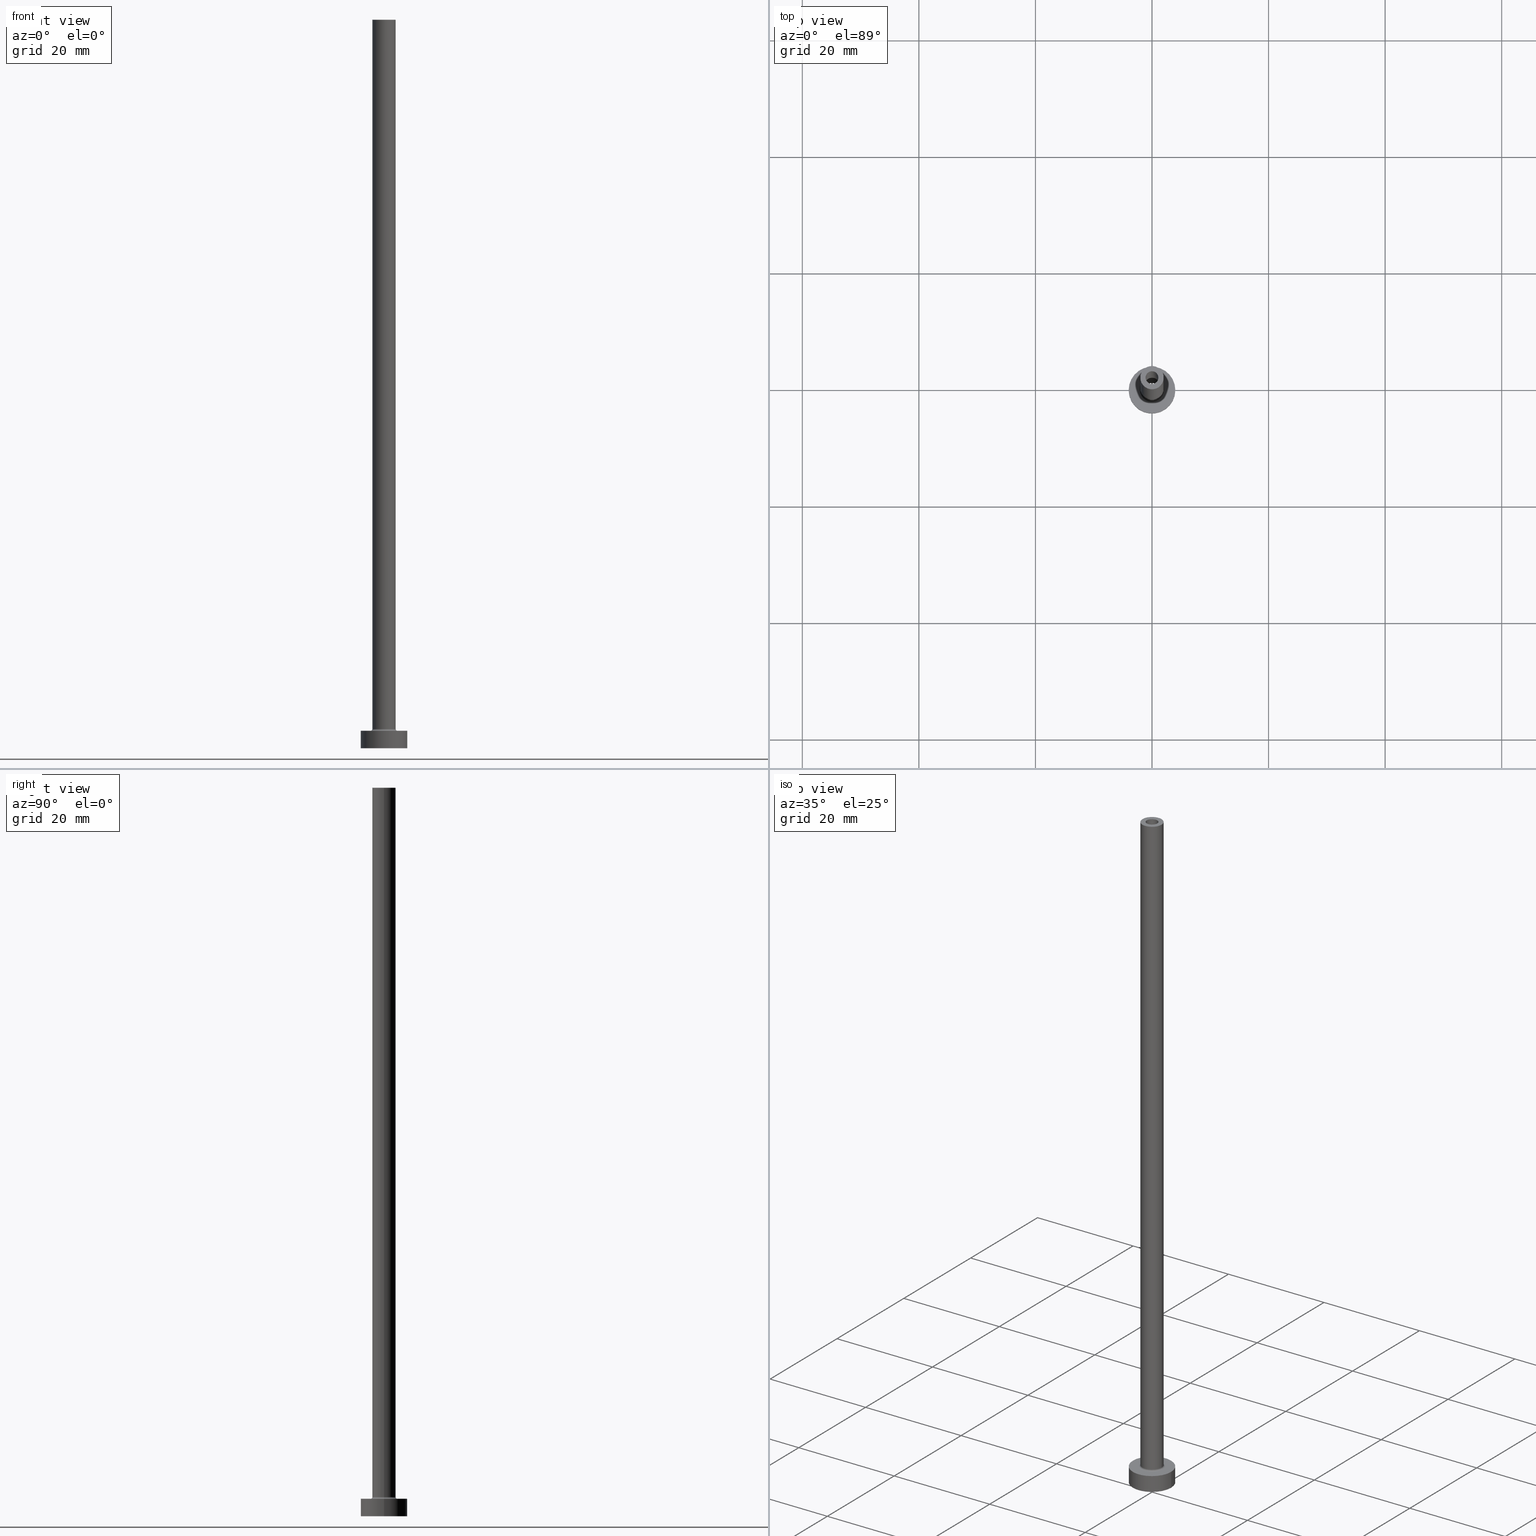
[diagram: canonical four-view strip — front | top / right | iso, engineering-drawing reading convention]
A machine part, canonical four-view strip (front | top / right | iso — engineering-drawing reading convention). The complete STEP part file that produces these views, byte-faithful:
ISO-10303-21;
HEADER;
FILE_DESCRIPTION (( 'STEP AP203' ),
    '1' );
FILE_NAME ('b1d0.STEP',
    '2023-02-13T12:49:57',
    ( '' ),
    ( '' ),
    'SwSTEP 2.0',
    'SolidWorks 2019',
    '' );
FILE_SCHEMA (( 'CONFIG_CONTROL_DESIGN' ));
ENDSEC;

DATA;
#1 = APPLICATION_CONTEXT ( 'configuration controlled 3d designs of mechanical parts and assemblies' ) ;
#2 = DIRECTION ( 'NONE',  ( 1.000000000000000000, 0.000000000000000000, 0.000000000000000000 ) ) ;
#3 = MANIFOLD_SOLID_BREP ( 'Odebrat vysunut�m4', #354 ) ;
#4 = ADVANCED_FACE ( 'NONE', ( #200, #272 ), #239, .F. ) ;
#5 = CALENDAR_DATE ( 2023, 13, 2 ) ;
#6 = DIRECTION ( 'NONE',  ( 1.000000000000000000, 0.000000000000000000, 0.000000000000000000 ) ) ;
#7 = AXIS2_PLACEMENT_3D ( 'NONE', #101, #423, #162 ) ;
#8 = CARTESIAN_POINT ( 'NONE',  ( -1.100000000000000089, 0.000000000000000000, 90.00000000000000000 ) ) ;
#9 = CC_DESIGN_DATE_AND_TIME_ASSIGNMENT ( #395, #108, ( #212 ) ) ;
#10 = AXIS2_PLACEMENT_3D ( 'NONE', #328, #150, #56 ) ;
#11 = CARTESIAN_POINT ( 'NONE',  ( 0.000000000000000000, 0.000000000000000000, 3.000000000000000000 ) ) ;
#12 = DIRECTION ( 'NONE',  ( -1.000000000000000000, 0.000000000000000000, 0.000000000000000000 ) ) ;
#13 = EDGE_LOOP ( 'NONE', ( #451, #30, #105, #449 ) ) ;
#14 = ADVANCED_FACE ( 'NONE', ( #57 ), #314, .F. ) ;
#15 = CYLINDRICAL_SURFACE ( 'NONE', #206, 1.250000000000000000 ) ;
#16 = EDGE_CURVE ( 'NONE', #421, #260, #115, .T. ) ;
#17 = ORIENTED_EDGE ( 'NONE', *, *, #130, .F. ) ;
#18 = VECTOR ( 'NONE', #336, 1000.000000000000000 ) ;
#19 = DIRECTION ( 'NONE',  ( -0.000000000000000000, -0.000000000000000000, -1.000000000000000000 ) ) ;
#20 = ORIENTED_EDGE ( 'NONE', *, *, #183, .T. ) ;
#21 = LINE ( 'NONE', #361, #49 ) ;
#22 = EDGE_LOOP ( 'NONE', ( #95, #267, #34, #416 ) ) ;
#23 = CARTESIAN_POINT ( 'NONE',  ( 0.000000000000000000, 0.000000000000000000, 90.00000000000000000 ) ) ;
#24 = ORIENTED_EDGE ( 'NONE', *, *, #28, .F. ) ;
#25 = APPROVAL_DATE_TIME ( #264, #394 ) ;
#26 = ORIENTED_EDGE ( 'NONE', *, *, #218, .T. ) ;
#27 = AXIS2_PLACEMENT_3D ( 'NONE', #166, #381, #137 ) ;
#28 = EDGE_CURVE ( 'NONE', #273, #69, #125, .T. ) ;
#29 = ORIENTED_EDGE ( 'NONE', *, *, #132, .F. ) ;
#30 = ORIENTED_EDGE ( 'NONE', *, *, #391, .T. ) ;
#31 = CARTESIAN_POINT ( 'NONE',  ( 0.000000000000000000, 0.000000000000000000, 3.000000000000000000 ) ) ;
#32 = CC_DESIGN_PERSON_AND_ORGANIZATION_ASSIGNMENT ( #104, #172, ( #438 ) ) ;
#33 = EDGE_LOOP ( 'NONE', ( #118, #437, #238, #347 ) ) ;
#34 = ORIENTED_EDGE ( 'NONE', *, *, #375, .T. ) ;
#35 = FACE_BOUND ( 'NONE', #254, .T. ) ;
#36 = COORDINATED_UNIVERSAL_TIME_OFFSET ( 1, 0, .AHEAD. ) ;
#37 = CARTESIAN_POINT ( 'NONE',  ( 0.000000000000000000, 0.000000000000000000, 3.000000000000000000 ) ) ;
#38 = CIRCLE ( 'NONE', #308, 0.2999999999999999334 ) ;
#39 = DATE_TIME_ROLE ( 'classification_date' ) ;
#40 = DIRECTION ( 'NONE',  ( 0.000000000000000000, 0.000000000000000000, 1.000000000000000000 ) ) ;
#41 = CARTESIAN_POINT ( 'NONE',  ( 0.000000000000000000, 0.000000000000000000, 0.000000000000000000 ) ) ;
#42 = COORDINATED_UNIVERSAL_TIME_OFFSET ( 1, 0, .AHEAD. ) ;
#43 = DIRECTION ( 'NONE',  ( 0.000000000000000000, 0.000000000000000000, 1.000000000000000000 ) ) ;
#44 = CIRCLE ( 'NONE', #362, 2.000000000000000000 ) ;
#45 = CARTESIAN_POINT ( 'NONE',  ( -4.000000000000000000, 0.000000000000000000, 0.000000000000000000 ) ) ;
#46 = CARTESIAN_POINT ( 'NONE',  ( -1.250000000000000000, 0.000000000000000000, 0.000000000000000000 ) ) ;
#47 = APPLICATION_CONTEXT ( 'configuration controlled 3d designs of mechanical parts and assemblies' ) ;
#48 = CARTESIAN_POINT ( 'NONE',  ( 0.000000000000000000, 0.000000000000000000, 90.00000000000000000 ) ) ;
#49 = VECTOR ( 'NONE', #296, 1000.000000000000000 ) ;
#50 = CARTESIAN_POINT ( 'NONE',  ( 2.299999999999999822, 0.000000000000000000, 2.999999999999998668 ) ) ;
#51 = ORIENTED_EDGE ( 'NONE', *, *, #63, .F. ) ;
#52 = DIRECTION ( 'NONE',  ( 0.000000000000000000, 0.000000000000000000, 1.000000000000000000 ) ) ;
#53 = EDGE_LOOP ( 'NONE', ( #24, #419 ) ) ;
#54 = EDGE_CURVE ( 'NONE', #273, #331, #447, .T. ) ;
#55 = ADVANCED_BREP_SHAPE_REPRESENTATION ( 'b1d0', ( #3, #387 ), #215 ) ;
#56 = DIRECTION ( 'NONE',  ( 1.000000000000000000, 0.000000000000000000, 0.000000000000000000 ) ) ;
#57 = FACE_OUTER_BOUND ( 'NONE', #13, .T. ) ;
#58 = UNCERTAINTY_MEASURE_WITH_UNIT (LENGTH_MEASURE( 1.000000000000000082E-05 ), #337, 'distance_accuracy_value', 'NONE');
#59 = EDGE_CURVE ( 'NONE', #340, #149, #367, .T. ) ;
#60 = PERSON_AND_ORGANIZATION ( #348, #271 ) ;
#61 = EDGE_LOOP ( 'NONE', ( #26, #382 ) ) ;
#62 = AXIS2_PLACEMENT_3D ( 'NONE', #255, #19, #12 ) ;
#63 = EDGE_CURVE ( 'NONE', #409, #312, #257, .T. ) ;
#64 = EDGE_LOOP ( 'NONE', ( #129, #275, #168, #164 ) ) ;
#65 = FACE_OUTER_BOUND ( 'NONE', #61, .T. ) ;
#66 = EDGE_LOOP ( 'NONE', ( #414, #121 ) ) ;
#67 = CIRCLE ( 'NONE', #402, 1.100000000000000089 ) ;
#68 = PERSON_AND_ORGANIZATION_ROLE ( 'design_owner' ) ;
#69 = VERTEX_POINT ( 'NONE', #399 ) ;
#70 = AXIS2_PLACEMENT_3D ( 'NONE', #248, #216, #359 ) ;
#71 = CARTESIAN_POINT ( 'NONE',  ( 0.000000000000000000, 0.000000000000000000, 3.000000000000000000 ) ) ;
#72 = DIRECTION ( 'NONE',  ( 0.000000000000000000, 0.000000000000000000, 1.000000000000000000 ) ) ;
#73 = AXIS2_PLACEMENT_3D ( 'NONE', #235, #338, #160 ) ;
#74 = DATE_AND_TIME ( #458, #454 ) ;
#75 = DIRECTION ( 'NONE',  ( 0.000000000000000000, 0.000000000000000000, -1.000000000000000000 ) ) ;
#76 = CC_DESIGN_APPROVAL ( #394, ( #212 ) ) ;
#77 = CYLINDRICAL_SURFACE ( 'NONE', #324, 1.100000000000000089 ) ;
#78 = COORDINATED_UNIVERSAL_TIME_OFFSET ( 1, 0, .AHEAD. ) ;
#79 = DIRECTION ( 'NONE',  ( 0.000000000000000000, 0.000000000000000000, 1.000000000000000000 ) ) ;
#80 = PRODUCT_DEFINITION_SHAPE ( 'NONE', 'NONE',  #212 ) ;
#81 = CARTESIAN_POINT ( 'NONE',  ( 0.000000000000000000, 0.000000000000000000, 125.0000000000000000 ) ) ;
#82 = AXIS2_PLACEMENT_3D ( 'NONE', #432, #113, #6 ) ;
#83 = LINE ( 'NONE', #156, #417 ) ;
#84 = CC_DESIGN_PERSON_AND_ORGANIZATION_ASSIGNMENT ( #180, #319, ( #135 ) ) ;
#85 = CARTESIAN_POINT ( 'NONE',  ( 0.000000000000000000, 0.000000000000000000, 125.0000000000000000 ) ) ;
#86 = EDGE_LOOP ( 'NONE', ( #185, #364 ) ) ;
#87 = ADVANCED_FACE ( 'NONE', ( #288 ), #217, .F. ) ;
#88 = FACE_OUTER_BOUND ( 'NONE', #195, .T. ) ;
#89 = EDGE_LOOP ( 'NONE', ( #99, #373 ) ) ;
#90 = AXIS2_PLACEMENT_3D ( 'NONE', #41, #145, #2 ) ;
#91 = LINE ( 'NONE', #401, #221 ) ;
#92 = LOCAL_TIME ( 13, 49, 57.00000000000000000, #78 ) ;
#93 = ORIENTED_EDGE ( 'NONE', *, *, #63, .T. ) ;
#94 = CALENDAR_DATE ( 2023, 13, 2 ) ;
#95 = ORIENTED_EDGE ( 'NONE', *, *, #355, .F. ) ;
#96 = ADVANCED_FACE ( 'NONE', ( #35, #214 ), #209, .T. ) ;
#97 =( NAMED_UNIT ( * ) PLANE_ANGLE_UNIT ( ) SI_UNIT ( $, .RADIAN. ) );
#98 = CIRCLE ( 'NONE', #10, 2.000000000000000000 ) ;
#99 = ORIENTED_EDGE ( 'NONE', *, *, #291, .F. ) ;
#100 = VECTOR ( 'NONE', #122, 1000.000000000000000 ) ;
#101 = CARTESIAN_POINT ( 'NONE',  ( 0.000000000000000000, 0.000000000000000000, 0.000000000000000000 ) ) ;
#102 = DIRECTION ( 'NONE',  ( -0.000000000000000000, -0.000000000000000000, -1.000000000000000000 ) ) ;
#103 = ORIENTED_EDGE ( 'NONE', *, *, #452, .F. ) ;
#104 = PERSON_AND_ORGANIZATION ( #348, #271 ) ;
#105 = ORIENTED_EDGE ( 'NONE', *, *, #59, .F. ) ;
#106 = AXIS2_PLACEMENT_3D ( 'NONE', #23, #52, #293 ) ;
#107 = DIRECTION ( 'NONE',  ( -0.000000000000000000, -0.000000000000000000, -1.000000000000000000 ) ) ;
#108 = DATE_TIME_ROLE ( 'creation_date' ) ;
#109 = CYLINDRICAL_SURFACE ( 'NONE', #119, 4.000000000000000000 ) ;
#110 = DIRECTION ( 'NONE',  ( 1.000000000000000000, 0.000000000000000000, 0.000000000000000000 ) ) ;
#111 = CC_DESIGN_APPROVAL ( #457, ( #438 ) ) ;
#112 = CARTESIAN_POINT ( 'NONE',  ( 0.000000000000000000, 0.000000000000000000, 125.0000000000000000 ) ) ;
#113 = DIRECTION ( 'NONE',  ( 0.000000000000000000, 0.000000000000000000, 1.000000000000000000 ) ) ;
#114 = EDGE_CURVE ( 'NONE', #456, #270, #284, .T. ) ;
#115 = CIRCLE ( 'NONE', #188, 2.000000000000000000 ) ;
#116 = DIRECTION ( 'NONE',  ( 0.000000000000000000, 0.000000000000000000, -1.000000000000000000 ) ) ;
#117 = EDGE_CURVE ( 'NONE', #342, #233, #67, .T. ) ;
#118 = ORIENTED_EDGE ( 'NONE', *, *, #305, .F. ) ;
#119 = AXIS2_PLACEMENT_3D ( 'NONE', #71, #211, #142 ) ;
#120 = DIRECTION ( 'NONE',  ( 0.000000000000000000, 0.000000000000000000, -1.000000000000000000 ) ) ;
#121 = ORIENTED_EDGE ( 'NONE', *, *, #386, .T. ) ;
#122 = DIRECTION ( 'NONE',  ( -0.000000000000000000, -0.000000000000000000, -1.000000000000000000 ) ) ;
#123 = EDGE_LOOP ( 'NONE', ( #334, #20, #187, #366 ) ) ;
#124 = FACE_OUTER_BOUND ( 'NONE', #377, .T. ) ;
#125 = CIRCLE ( 'NONE', #276, 1.250000000000000000 ) ;
#126 = CIRCLE ( 'NONE', #404, 1.250000000000000000 ) ;
#127 = COORDINATED_UNIVERSAL_TIME_OFFSET ( 1, 0, .AHEAD. ) ;
#128 = APPROVAL_PERSON_ORGANIZATION ( #349, #457, #398 ) ;
#129 = ORIENTED_EDGE ( 'NONE', *, *, #289, .F. ) ;
#130 = EDGE_CURVE ( 'NONE', #270, #456, #261, .T. ) ;
#131 = CARTESIAN_POINT ( 'NONE',  ( 0.000000000000000000, 0.000000000000000000, 3.000000000000000000 ) ) ;
#132 = EDGE_CURVE ( 'NONE', #312, #409, #167, .T. ) ;
#133 = DIRECTION ( 'NONE',  ( -0.000000000000000000, -0.000000000000000000, -1.000000000000000000 ) ) ;
#134 =( NAMED_UNIT ( * ) SI_UNIT ( $, .STERADIAN. ) SOLID_ANGLE_UNIT ( ) );
#135 = PRODUCT_DEFINITION_FORMATION_WITH_SPECIFIED_SOURCE ( 'LIBOVOLN�', '', #177, .NOT_KNOWN. ) ;
#136 = ORIENTED_EDGE ( 'NONE', *, *, #245, .T. ) ;
#137 = DIRECTION ( 'NONE',  ( 1.000000000000000000, 0.000000000000000000, 0.000000000000000000 ) ) ;
#138 = DIRECTION ( 'NONE',  ( 0.000000000000000000, 0.000000000000000000, -1.000000000000000000 ) ) ;
#139 = VERTEX_POINT ( 'NONE', #246 ) ;
#140 = DIRECTION ( 'NONE',  ( 0.000000000000000000, -1.000000000000000000, 0.000000000000000000 ) ) ;
#141 = AXIS2_PLACEMENT_3D ( 'NONE', #81, #229, #220 ) ;
#142 = DIRECTION ( 'NONE',  ( -1.000000000000000000, 0.000000000000000000, 0.000000000000000000 ) ) ;
#143 = SHAPE_DEFINITION_REPRESENTATION ( #80, #55 ) ;
#144 = FACE_OUTER_BOUND ( 'NONE', #22, .T. ) ;
#145 = DIRECTION ( 'NONE',  ( 0.000000000000000000, 0.000000000000000000, 1.000000000000000000 ) ) ;
#146 = CIRCLE ( 'NONE', #295, 2.299999999999999822 ) ;
#147 = CARTESIAN_POINT ( 'NONE',  ( 2.299999999999999822, 0.000000000000000000, 3.299999999999997158 ) ) ;
#148 = FACE_OUTER_BOUND ( 'NONE', #230, .T. ) ;
#149 = VERTEX_POINT ( 'NONE', #320 ) ;
#150 = DIRECTION ( 'NONE',  ( 0.000000000000000000, 0.000000000000000000, 1.000000000000000000 ) ) ;
#151 = CIRCLE ( 'NONE', #191, 4.000000000000000000 ) ;
#152 = LOCAL_TIME ( 13, 49, 57.00000000000000000, #351 ) ;
#153 = FACE_BOUND ( 'NONE', #306, .T. ) ;
#154 = DIRECTION ( 'NONE',  ( 1.000000000000000000, 0.000000000000000000, 0.000000000000000000 ) ) ;
#155 = ORIENTED_EDGE ( 'NONE', *, *, #391, .F. ) ;
#156 = CARTESIAN_POINT ( 'NONE',  ( -2.000000000000000000, 0.000000000000000000, 125.0000000000000000 ) ) ;
#157 = AXIS2_PLACEMENT_3D ( 'NONE', #393, #322, #279 ) ;
#158 = CIRCLE ( 'NONE', #356, 0.2999999999999999334 ) ;
#159 = PERSON_AND_ORGANIZATION ( #348, #271 ) ;
#160 = DIRECTION ( 'NONE',  ( 1.000000000000000000, 0.000000000000000000, 0.000000000000000000 ) ) ;
#161 = DESIGN_CONTEXT ( 'detailed design', #47, 'design' ) ;
#162 = DIRECTION ( 'NONE',  ( 1.000000000000000000, 0.000000000000000000, -0.000000000000000000 ) ) ;
#163 = CARTESIAN_POINT ( 'NONE',  ( 4.000000000000000000, 4.898587196589412829E-16, 3.000000000000000000 ) ) ;
#164 = ORIENTED_EDGE ( 'NONE', *, *, #352, .T. ) ;
#165 = AXIS2_PLACEMENT_3D ( 'NONE', #131, #353, #283 ) ;
#166 = CARTESIAN_POINT ( 'NONE',  ( 0.000000000000000000, 0.000000000000000000, 3.299999999999997158 ) ) ;
#167 = CIRCLE ( 'NONE', #90, 4.000000000000000000 ) ;
#168 = ORIENTED_EDGE ( 'NONE', *, *, #368, .T. ) ;
#169 = PERSON_AND_ORGANIZATION ( #348, #271 ) ;
#170 = ORIENTED_EDGE ( 'NONE', *, *, #375, .F. ) ;
#171 = CARTESIAN_POINT ( 'NONE',  ( 2.000000000000000000, 2.449293598294705921E-16, 125.0000000000000000 ) ) ;
#172 = PERSON_AND_ORGANIZATION_ROLE ( 'classification_officer' ) ;
#173 = ADVANCED_FACE ( 'NONE', ( #426 ), #109, .T. ) ;
#174 = CARTESIAN_POINT ( 'NONE',  ( 0.000000000000000000, 0.000000000000000000, 93.53553390593272354 ) ) ;
#175 = AXIS2_PLACEMENT_3D ( 'NONE', #48, #403, #154 ) ;
#176 = DIRECTION ( 'NONE',  ( 1.000000000000000000, 0.000000000000000000, 0.000000000000000000 ) ) ;
#177 = PRODUCT ( 'b1d0', 'b1d0', '', ( #383 ) ) ;
#178 = DIRECTION ( 'NONE',  ( 0.000000000000000000, 0.000000000000000000, -1.000000000000000000 ) ) ;
#179 = EDGE_CURVE ( 'NONE', #434, #139, #151, .T. ) ;
#180 = PERSON_AND_ORGANIZATION ( #348, #271 ) ;
#181 = CARTESIAN_POINT ( 'NONE',  ( 0.000000000000000000, 0.000000000000000000, 90.00000000000000000 ) ) ;
#182 = VECTOR ( 'NONE', #186, 1000.000000000000000 ) ;
#183 = EDGE_CURVE ( 'NONE', #69, #273, #445, .T. ) ;
#184 = DIRECTION ( 'NONE',  ( 0.000000000000000000, 0.000000000000000000, -1.000000000000000000 ) ) ;
#185 = ORIENTED_EDGE ( 'NONE', *, *, #59, .T. ) ;
#186 = DIRECTION ( 'NONE',  ( 0.000000000000000000, 0.000000000000000000, -1.000000000000000000 ) ) ;
#187 = ORIENTED_EDGE ( 'NONE', *, *, #54, .T. ) ;
#188 = AXIS2_PLACEMENT_3D ( 'NONE', #303, #310, #385 ) ;
#189 = CARTESIAN_POINT ( 'NONE',  ( 4.000000000000000000, 4.898587196589412829E-16, 3.000000000000000000 ) ) ;
#190 = ORIENTED_EDGE ( 'NONE', *, *, #16, .F. ) ;
#191 = AXIS2_PLACEMENT_3D ( 'NONE', #37, #281, #110 ) ;
#192 = DIRECTION ( 'NONE',  ( -1.000000000000000000, 0.000000000000000000, 0.000000000000000000 ) ) ;
#193 = ORIENTED_EDGE ( 'NONE', *, *, #16, .T. ) ;
#194 = LINE ( 'NONE', #189, #100 ) ;
#195 = EDGE_LOOP ( 'NONE', ( #292, #297, #193, #412 ) ) ;
#196 = DIRECTION ( 'NONE',  ( 1.000000000000000000, 0.000000000000000000, 0.000000000000000000 ) ) ;
#197 = ORIENTED_EDGE ( 'NONE', *, *, #305, .T. ) ;
#198 = AXIS2_PLACEMENT_3D ( 'NONE', #31, #102, #411 ) ;
#199 = PERSON_AND_ORGANIZATION_ROLE ( 'creator' ) ;
#200 = FACE_BOUND ( 'NONE', #89, .T. ) ;
#201 = EDGE_CURVE ( 'NONE', #232, #331, #378, .T. ) ;
#202 = ORIENTED_EDGE ( 'NONE', *, *, #130, .T. ) ;
#203 = EDGE_CURVE ( 'NONE', #149, #340, #146, .T. ) ;
#204 = DIRECTION ( 'NONE',  ( 0.000000000000000000, 0.000000000000000000, 1.000000000000000000 ) ) ;
#205 = DIRECTION ( 'NONE',  ( -1.000000000000000000, 1.224646799147353207E-16, 0.000000000000000000 ) ) ;
#206 = AXIS2_PLACEMENT_3D ( 'NONE', #223, #120, #192 ) ;
#207 = CARTESIAN_POINT ( 'NONE',  ( 0.000000000000000000, 0.000000000000000000, 90.00000000000000000 ) ) ;
#208 = DATE_AND_TIME ( #5, #152 ) ;
#209 = PLANE ( 'NONE',  #427 ) ;
#210 = DATE_AND_TIME ( #240, #92 ) ;
#211 = DIRECTION ( 'NONE',  ( -0.000000000000000000, -0.000000000000000000, -1.000000000000000000 ) ) ;
#212 = PRODUCT_DEFINITION ( 'NEZN�M�', '', #135, #161 ) ;
#213 = PERSON_AND_ORGANIZATION_ROLE ( 'design_supplier' ) ;
#214 = FACE_OUTER_BOUND ( 'NONE', #66, .T. ) ;
#215 =( GEOMETRIC_REPRESENTATION_CONTEXT ( 3 ) GLOBAL_UNCERTAINTY_ASSIGNED_CONTEXT ( ( #58 ) ) GLOBAL_UNIT_ASSIGNED_CONTEXT ( ( #337, #97, #134 ) ) REPRESENTATION_CONTEXT ( 'NONE', 'WORKASPACE' ) );
#216 = DIRECTION ( 'NONE',  ( 0.000000000000000000, 0.000000000000000000, 1.000000000000000000 ) ) ;
#217 = CYLINDRICAL_SURFACE ( 'NONE', #422, 1.250000000000000000 ) ;
#218 = EDGE_CURVE ( 'NONE', #139, #434, #429, .T. ) ;
#219 = AXIS2_PLACEMENT_3D ( 'NONE', #317, #40, #176 ) ;
#220 = DIRECTION ( 'NONE',  ( 1.000000000000000000, 0.000000000000000000, 0.000000000000000000 ) ) ;
#221 = VECTOR ( 'NONE', #116, 1000.000000000000000 ) ;
#222 = CYLINDRICAL_SURFACE ( 'NONE', #436, 2.000000000000000000 ) ;
#223 = CARTESIAN_POINT ( 'NONE',  ( 0.000000000000000000, 0.000000000000000000, 93.53553390593272354 ) ) ;
#224 = ORIENTED_EDGE ( 'NONE', *, *, #28, .T. ) ;
#225 = CC_DESIGN_PERSON_AND_ORGANIZATION_ASSIGNMENT ( #159, #199, ( #212 ) ) ;
#226 = DIRECTION ( 'NONE',  ( -0.000000000000000000, -0.000000000000000000, -1.000000000000000000 ) ) ;
#227 = VERTEX_POINT ( 'NONE', #171 ) ;
#228 = AXIS2_PLACEMENT_3D ( 'NONE', #304, #231, #379 ) ;
#229 = DIRECTION ( 'NONE',  ( 0.000000000000000000, 0.000000000000000000, 1.000000000000000000 ) ) ;
#230 = EDGE_LOOP ( 'NONE', ( #224, #265, #329, #441 ) ) ;
#231 = DIRECTION ( 'NONE',  ( 0.000000000000000000, 0.000000000000000000, 1.000000000000000000 ) ) ;
#232 = VERTEX_POINT ( 'NONE', #244 ) ;
#233 = VERTEX_POINT ( 'NONE', #8 ) ;
#234 = CARTESIAN_POINT ( 'NONE',  ( 1.100000000000000089, 1.347111479062088503E-16, 125.0000000000000000 ) ) ;
#235 = CARTESIAN_POINT ( 'NONE',  ( 0.000000000000000000, 0.000000000000000000, 3.299999999999997158 ) ) ;
#236 = ADVANCED_FACE ( 'NONE', ( #144 ), #77, .F. ) ;
#237 = CARTESIAN_POINT ( 'NONE',  ( 0.000000000000000000, 0.000000000000000000, 0.000000000000000000 ) ) ;
#238 = ORIENTED_EDGE ( 'NONE', *, *, #452, .T. ) ;
#239 = PLANE ( 'NONE',  #7 ) ;
#240 = CALENDAR_DATE ( 2023, 13, 2 ) ;
#241 = EDGE_LOOP ( 'NONE', ( #29, #51 ) ) ;
#242 = DIRECTION ( 'NONE',  ( 1.000000000000000000, 0.000000000000000000, 0.000000000000000000 ) ) ;
#243 = PERSON_AND_ORGANIZATION ( #348, #271 ) ;
#244 = CARTESIAN_POINT ( 'NONE',  ( 1.250000000000000000, 1.530808498934191571E-16, 0.000000000000000000 ) ) ;
#245 = EDGE_CURVE ( 'NONE', #421, #340, #38, .T. ) ;
#246 = CARTESIAN_POINT ( 'NONE',  ( -4.000000000000000000, 0.000000000000000000, 3.000000000000000000 ) ) ;
#247 = EDGE_CURVE ( 'NONE', #69, #232, #425, .T. ) ;
#248 = CARTESIAN_POINT ( 'NONE',  ( 0.000000000000000000, 0.000000000000000000, 125.0000000000000000 ) ) ;
#249 = CARTESIAN_POINT ( 'NONE',  ( 0.000000000000000000, 0.000000000000000000, 125.0000000000000000 ) ) ;
#250 = CARTESIAN_POINT ( 'NONE',  ( -1.100000000000000089, 0.000000000000000000, 125.0000000000000000 ) ) ;
#251 = ORIENTED_EDGE ( 'NONE', *, *, #179, .F. ) ;
#252 = APPROVAL_PERSON_ORGANIZATION ( #169, #394, #311 ) ;
#253 = FACE_OUTER_BOUND ( 'NONE', #53, .T. ) ;
#254 = EDGE_LOOP ( 'NONE', ( #17, #294 ) ) ;
#255 = CARTESIAN_POINT ( 'NONE',  ( 0.000000000000000000, 0.000000000000000000, 125.0000000000000000 ) ) ;
#256 = ORIENTED_EDGE ( 'NONE', *, *, #355, .T. ) ;
#257 = CIRCLE ( 'NONE', #157, 4.000000000000000000 ) ;
#258 = EDGE_CURVE ( 'NONE', #407, #227, #453, .T. ) ;
#259 = CARTESIAN_POINT ( 'NONE',  ( 1.250000000000000000, 1.530808498934191571E-16, 93.53553390593272354 ) ) ;
#260 = VERTEX_POINT ( 'NONE', #371 ) ;
#261 = CIRCLE ( 'NONE', #70, 1.100000000000000089 ) ;
#262 = VECTOR ( 'NONE', #133, 1000.000000000000000 ) ;
#263 = PRODUCT_RELATED_PRODUCT_CATEGORY ( 'detail', '', ( #177 ) ) ;
#264 = DATE_AND_TIME ( #94, #316 ) ;
#265 = ORIENTED_EDGE ( 'NONE', *, *, #247, .T. ) ;
#266 = CYLINDRICAL_SURFACE ( 'NONE', #198, 4.000000000000000000 ) ;
#267 = ORIENTED_EDGE ( 'NONE', *, *, #114, .T. ) ;
#268 = ADVANCED_FACE ( 'NONE', ( #365 ), #290, .T. ) ;
#269 = CARTESIAN_POINT ( 'NONE',  ( -4.000000000000000000, 0.000000000000000000, 3.000000000000000000 ) ) ;
#270 = VERTEX_POINT ( 'NONE', #406 ) ;
#271 = ORGANIZATION ( 'NEUR�EN�', 'NEUR�EN�', '' ) ;
#272 = FACE_OUTER_BOUND ( 'NONE', #241, .T. ) ;
#273 = VERTEX_POINT ( 'NONE', #333 ) ;
#274 = EDGE_CURVE ( 'NONE', #233, #342, #370, .T. ) ;
#275 = ORIENTED_EDGE ( 'NONE', *, *, #258, .F. ) ;
#276 = AXIS2_PLACEMENT_3D ( 'NONE', #207, #204, #344 ) ;
#277 = APPROVAL ( #358, 'NEUR�EN�' ) ;
#278 = AXIS2_PLACEMENT_3D ( 'NONE', #181, #79, #242 ) ;
#279 = DIRECTION ( 'NONE',  ( 1.000000000000000000, 0.000000000000000000, 0.000000000000000000 ) ) ;
#280 = PERSON_AND_ORGANIZATION ( #348, #271 ) ;
#281 = DIRECTION ( 'NONE',  ( 0.000000000000000000, 0.000000000000000000, 1.000000000000000000 ) ) ;
#282 = APPROVAL_STATUS ( 'not_yet_approved' ) ;
#283 = DIRECTION ( 'NONE',  ( 1.000000000000000000, 0.000000000000000000, 0.000000000000000000 ) ) ;
#284 = CIRCLE ( 'NONE', #219, 1.100000000000000089 ) ;
#285 = ADVANCED_FACE ( 'NONE', ( #88 ), #222, .T. ) ;
#286 = SECURITY_CLASSIFICATION_LEVEL ( 'unclassified' ) ;
#287 = CARTESIAN_POINT ( 'NONE',  ( 0.000000000000000000, 0.000000000000000000, 90.00000000000000000 ) ) ;
#288 = FACE_OUTER_BOUND ( 'NONE', #123, .T. ) ;
#289 = EDGE_CURVE ( 'NONE', #227, #421, #21, .T. ) ;
#290 = CYLINDRICAL_SURFACE ( 'NONE', #62, 2.000000000000000000 ) ;
#291 = EDGE_CURVE ( 'NONE', #331, #232, #126, .T. ) ;
#292 = ORIENTED_EDGE ( 'NONE', *, *, #386, .F. ) ;
#293 = DIRECTION ( 'NONE',  ( 1.000000000000000000, 0.000000000000000000, -0.000000000000000000 ) ) ;
#294 = ORIENTED_EDGE ( 'NONE', *, *, #114, .F. ) ;
#295 = AXIS2_PLACEMENT_3D ( 'NONE', #11, #107, #461 ) ;
#296 = DIRECTION ( 'NONE',  ( -0.000000000000000000, -0.000000000000000000, -1.000000000000000000 ) ) ;
#297 = ORIENTED_EDGE ( 'NONE', *, *, #289, .T. ) ;
#298 = CARTESIAN_POINT ( 'NONE',  ( 0.000000000000000000, 0.000000000000000000, 3.299999999999997158 ) ) ;
#299 = VECTOR ( 'NONE', #138, 1000.000000000000000 ) ;
#300 = CARTESIAN_POINT ( 'NONE',  ( 1.100000000000000089, 1.347111479062088503E-16, 90.00000000000000000 ) ) ;
#301 = ORIENTED_EDGE ( 'NONE', *, *, #274, .T. ) ;
#302 = TOROIDAL_SURFACE ( 'NONE', #27, 2.299999999999999822, 0.2999999999999999889 ) ;
#303 = CARTESIAN_POINT ( 'NONE',  ( 0.000000000000000000, 0.000000000000000000, 3.299999999999997158 ) ) ;
#304 = CARTESIAN_POINT ( 'NONE',  ( 0.000000000000000000, 0.000000000000000000, 3.000000000000000000 ) ) ;
#305 = EDGE_CURVE ( 'NONE', #434, #409, #194, .T. ) ;
#306 = EDGE_LOOP ( 'NONE', ( #301, #444 ) ) ;
#307 = ORIENTED_EDGE ( 'NONE', *, *, #203, .F. ) ;
#308 = AXIS2_PLACEMENT_3D ( 'NONE', #147, #140, #388 ) ;
#309 = FACE_OUTER_BOUND ( 'NONE', #33, .T. ) ;
#310 = DIRECTION ( 'NONE',  ( 0.000000000000000000, 0.000000000000000000, 1.000000000000000000 ) ) ;
#311 = APPROVAL_ROLE ( '' ) ;
#312 = VERTEX_POINT ( 'NONE', #45 ) ;
#313 = DIRECTION ( 'NONE',  ( 1.000000000000000000, 0.000000000000000000, 0.000000000000000000 ) ) ;
#314 = TOROIDAL_SURFACE ( 'NONE', #73, 2.299999999999999822, 0.2999999999999999889 ) ;
#315 = APPROVAL_DATE_TIME ( #208, #457 ) ;
#316 = LOCAL_TIME ( 13, 49, 57.00000000000000000, #127 ) ;
#317 = CARTESIAN_POINT ( 'NONE',  ( 0.000000000000000000, 0.000000000000000000, 125.0000000000000000 ) ) ;
#318 = CC_DESIGN_SECURITY_CLASSIFICATION ( #438, ( #135 ) ) ;
#319 = PERSON_AND_ORGANIZATION_ROLE ( 'creator' ) ;
#320 = CARTESIAN_POINT ( 'NONE',  ( -2.299999999999999822, 2.816687638038912056E-16, 2.999999999999998668 ) ) ;
#321 = ADVANCED_FACE ( 'NONE', ( #148 ), #15, .F. ) ;
#322 = DIRECTION ( 'NONE',  ( 0.000000000000000000, 0.000000000000000000, 1.000000000000000000 ) ) ;
#323 = DIRECTION ( 'NONE',  ( -1.000000000000000000, 0.000000000000000000, 0.000000000000000000 ) ) ;
#324 = AXIS2_PLACEMENT_3D ( 'NONE', #112, #178, #323 ) ;
#325 = LINE ( 'NONE', #250, #182 ) ;
#326 = EDGE_LOOP ( 'NONE', ( #251, #197, #93, #103 ) ) ;
#327 = CC_DESIGN_DATE_AND_TIME_ASSIGNMENT ( #210, #39, ( #438 ) ) ;
#328 = CARTESIAN_POINT ( 'NONE',  ( 0.000000000000000000, 0.000000000000000000, 125.0000000000000000 ) ) ;
#329 = ORIENTED_EDGE ( 'NONE', *, *, #201, .T. ) ;
#330 = PLANE ( 'NONE',  #106 ) ;
#331 = VERTEX_POINT ( 'NONE', #46 ) ;
#332 = LOCAL_TIME ( 13, 49, 57.00000000000000000, #42 ) ;
#333 = CARTESIAN_POINT ( 'NONE',  ( -1.250000000000000000, 0.000000000000000000, 90.00000000000000000 ) ) ;
#334 = ORIENTED_EDGE ( 'NONE', *, *, #247, .F. ) ;
#335 = ADVANCED_FACE ( 'NONE', ( #153, #253 ), #330, .F. ) ;
#336 = DIRECTION ( 'NONE',  ( 0.000000000000000000, 0.000000000000000000, -1.000000000000000000 ) ) ;
#337 =( LENGTH_UNIT ( ) NAMED_UNIT ( * ) SI_UNIT ( .MILLI., .METRE. ) );
#338 = DIRECTION ( 'NONE',  ( 0.000000000000000000, 0.000000000000000000, 1.000000000000000000 ) ) ;
#339 = LINE ( 'NONE', #269, #262 ) ;
#340 = VERTEX_POINT ( 'NONE', #50 ) ;
#341 = FACE_BOUND ( 'NONE', #86, .T. ) ;
#342 = VERTEX_POINT ( 'NONE', #300 ) ;
#343 = CARTESIAN_POINT ( 'NONE',  ( -2.299999999999999822, 2.816687638038912056E-16, 3.299999999999997158 ) ) ;
#344 = DIRECTION ( 'NONE',  ( 1.000000000000000000, 0.000000000000000000, 0.000000000000000000 ) ) ;
#345 = CC_DESIGN_APPROVAL ( #277, ( #135 ) ) ;
#346 = APPLICATION_PROTOCOL_DEFINITION ( 'international standard', 'config_control_design', 1994, #47 ) ;
#347 = ORIENTED_EDGE ( 'NONE', *, *, #132, .T. ) ;
#348 = PERSON ( 'NEUR�EN�', 'NEUR�EN�', 'NEUR�EN�', ('NEUR�EN�'), ('NEUR�EN�'), ('NEUR�EN�') ) ;
#349 = PERSON_AND_ORGANIZATION ( #348, #271 ) ;
#350 = DIRECTION ( 'NONE',  ( 1.000000000000000000, 0.000000000000000000, 0.000000000000000000 ) ) ;
#351 = COORDINATED_UNIVERSAL_TIME_OFFSET ( 1, 0, .AHEAD. ) ;
#352 = EDGE_CURVE ( 'NONE', #260, #421, #44, .T. ) ;
#353 = DIRECTION ( 'NONE',  ( -0.000000000000000000, -0.000000000000000000, -1.000000000000000000 ) ) ;
#354 = CLOSED_SHELL ( 'NONE', ( #374, #321, #14, #285, #173, #460, #400, #4, #268, #96, #442, #87, #335, #236 ) ) ;
#355 = EDGE_CURVE ( 'NONE', #456, #342, #91, .T. ) ;
#356 = AXIS2_PLACEMENT_3D ( 'NONE', #343, #448, #205 ) ;
#357 = DIRECTION ( 'NONE',  ( -1.000000000000000000, 0.000000000000000000, 0.000000000000000000 ) ) ;
#358 = APPROVAL_STATUS ( 'not_yet_approved' ) ;
#359 = DIRECTION ( 'NONE',  ( 1.000000000000000000, 0.000000000000000000, 0.000000000000000000 ) ) ;
#360 = CALENDAR_DATE ( 2023, 13, 2 ) ;
#361 = CARTESIAN_POINT ( 'NONE',  ( 2.000000000000000000, 2.449293598294705921E-16, 125.0000000000000000 ) ) ;
#362 = AXIS2_PLACEMENT_3D ( 'NONE', #298, #440, #408 ) ;
#363 = DIRECTION ( 'NONE',  ( -0.000000000000000000, -0.000000000000000000, -1.000000000000000000 ) ) ;
#364 = ORIENTED_EDGE ( 'NONE', *, *, #203, .T. ) ;
#365 = FACE_OUTER_BOUND ( 'NONE', #64, .T. ) ;
#366 = ORIENTED_EDGE ( 'NONE', *, *, #291, .T. ) ;
#367 = CIRCLE ( 'NONE', #165, 2.299999999999999822 ) ;
#368 = EDGE_CURVE ( 'NONE', #407, #260, #83, .T. ) ;
#369 = DIRECTION ( 'NONE',  ( -1.000000000000000000, 0.000000000000000000, 0.000000000000000000 ) ) ;
#370 = CIRCLE ( 'NONE', #175, 1.100000000000000089 ) ;
#371 = CARTESIAN_POINT ( 'NONE',  ( -2.000000000000000000, 0.000000000000000000, 3.299999999999997158 ) ) ;
#372 = ORIENTED_EDGE ( 'NONE', *, *, #274, .F. ) ;
#373 = ORIENTED_EDGE ( 'NONE', *, *, #201, .F. ) ;
#374 = ADVANCED_FACE ( 'NONE', ( #124 ), #443, .F. ) ;
#375 = EDGE_CURVE ( 'NONE', #270, #233, #325, .T. ) ;
#376 = APPLICATION_PROTOCOL_DEFINITION ( 'international standard', 'config_control_design', 1994, #1 ) ;
#377 = EDGE_LOOP ( 'NONE', ( #202, #256, #372, #170 ) ) ;
#378 = CIRCLE ( 'NONE', #410, 1.250000000000000000 ) ;
#379 = DIRECTION ( 'NONE',  ( 1.000000000000000000, 0.000000000000000000, -0.000000000000000000 ) ) ;
#380 = EDGE_LOOP ( 'NONE', ( #155, #190, #136, #307 ) ) ;
#381 = DIRECTION ( 'NONE',  ( 0.000000000000000000, 0.000000000000000000, 1.000000000000000000 ) ) ;
#382 = ORIENTED_EDGE ( 'NONE', *, *, #179, .T. ) ;
#383 = MECHANICAL_CONTEXT ( 'NONE', #1, 'mechanical' ) ;
#384 = CC_DESIGN_PERSON_AND_ORGANIZATION_ASSIGNMENT ( #60, #68, ( #177 ) ) ;
#385 = DIRECTION ( 'NONE',  ( 1.000000000000000000, 0.000000000000000000, 0.000000000000000000 ) ) ;
#386 = EDGE_CURVE ( 'NONE', #227, #407, #98, .T. ) ;
#387 = AXIS2_PLACEMENT_3D ( 'NONE', #237, #420, #196 ) ;
#388 = DIRECTION ( 'NONE',  ( 0.000000000000000000, 0.000000000000000000, -1.000000000000000000 ) ) ;
#389 = APPROVAL_DATE_TIME ( #74, #277 ) ;
#390 = CARTESIAN_POINT ( 'NONE',  ( 0.000000000000000000, 0.000000000000000000, 125.0000000000000000 ) ) ;
#391 = EDGE_CURVE ( 'NONE', #260, #149, #158, .T. ) ;
#392 = APPROVAL_ROLE ( '' ) ;
#393 = CARTESIAN_POINT ( 'NONE',  ( 0.000000000000000000, 0.000000000000000000, 0.000000000000000000 ) ) ;
#394 = APPROVAL ( #446, 'NEUR�EN�' ) ;
#395 = DATE_AND_TIME ( #360, #332 ) ;
#396 = APPROVAL_PERSON_ORGANIZATION ( #243, #277, #392 ) ;
#397 = CARTESIAN_POINT ( 'NONE',  ( 0.000000000000000000, 0.000000000000000000, 0.000000000000000000 ) ) ;
#398 = APPROVAL_ROLE ( '' ) ;
#399 = CARTESIAN_POINT ( 'NONE',  ( 1.250000000000000000, 1.530808498934191571E-16, 90.00000000000000000 ) ) ;
#400 = ADVANCED_FACE ( 'NONE', ( #341, #65 ), #455, .T. ) ;
#401 = CARTESIAN_POINT ( 'NONE',  ( 1.100000000000000089, 1.347111479062088503E-16, 125.0000000000000000 ) ) ;
#402 = AXIS2_PLACEMENT_3D ( 'NONE', #287, #43, #350 ) ;
#403 = DIRECTION ( 'NONE',  ( 0.000000000000000000, 0.000000000000000000, 1.000000000000000000 ) ) ;
#404 = AXIS2_PLACEMENT_3D ( 'NONE', #435, #363, #433 ) ;
#405 = DIRECTION ( 'NONE',  ( -1.000000000000000000, 0.000000000000000000, 0.000000000000000000 ) ) ;
#406 = CARTESIAN_POINT ( 'NONE',  ( -1.100000000000000089, 0.000000000000000000, 125.0000000000000000 ) ) ;
#407 = VERTEX_POINT ( 'NONE', #450 ) ;
#408 = DIRECTION ( 'NONE',  ( 1.000000000000000000, 0.000000000000000000, 0.000000000000000000 ) ) ;
#409 = VERTEX_POINT ( 'NONE', #415 ) ;
#410 = AXIS2_PLACEMENT_3D ( 'NONE', #397, #430, #313 ) ;
#411 = DIRECTION ( 'NONE',  ( -1.000000000000000000, 0.000000000000000000, 0.000000000000000000 ) ) ;
#412 = ORIENTED_EDGE ( 'NONE', *, *, #368, .F. ) ;
#413 = CARTESIAN_POINT ( 'NONE',  ( 2.000000000000000000, 2.449293598294705921E-16, 3.299999999999997158 ) ) ;
#414 = ORIENTED_EDGE ( 'NONE', *, *, #258, .T. ) ;
#415 = CARTESIAN_POINT ( 'NONE',  ( 4.000000000000000000, 4.898587196589412829E-16, 0.000000000000000000 ) ) ;
#416 = ORIENTED_EDGE ( 'NONE', *, *, #117, .F. ) ;
#417 = VECTOR ( 'NONE', #439, 1000.000000000000000 ) ;
#418 = FACE_OUTER_BOUND ( 'NONE', #380, .T. ) ;
#419 = ORIENTED_EDGE ( 'NONE', *, *, #183, .F. ) ;
#420 = DIRECTION ( 'NONE',  ( 0.000000000000000000, 0.000000000000000000, 1.000000000000000000 ) ) ;
#421 = VERTEX_POINT ( 'NONE', #413 ) ;
#422 = AXIS2_PLACEMENT_3D ( 'NONE', #174, #75, #357 ) ;
#423 = DIRECTION ( 'NONE',  ( 0.000000000000000000, 0.000000000000000000, 1.000000000000000000 ) ) ;
#424 = AXIS2_PLACEMENT_3D ( 'NONE', #249, #184, #405 ) ;
#425 = LINE ( 'NONE', #259, #18 ) ;
#426 = FACE_OUTER_BOUND ( 'NONE', #326, .T. ) ;
#427 = AXIS2_PLACEMENT_3D ( 'NONE', #390, #72, #428 ) ;
#428 = DIRECTION ( 'NONE',  ( 1.000000000000000000, 0.000000000000000000, -0.000000000000000000 ) ) ;
#429 = CIRCLE ( 'NONE', #82, 4.000000000000000000 ) ;
#430 = DIRECTION ( 'NONE',  ( -0.000000000000000000, -0.000000000000000000, -1.000000000000000000 ) ) ;
#431 = CC_DESIGN_PERSON_AND_ORGANIZATION_ASSIGNMENT ( #280, #213, ( #135 ) ) ;
#432 = CARTESIAN_POINT ( 'NONE',  ( 0.000000000000000000, 0.000000000000000000, 3.000000000000000000 ) ) ;
#433 = DIRECTION ( 'NONE',  ( 1.000000000000000000, 0.000000000000000000, 0.000000000000000000 ) ) ;
#434 = VERTEX_POINT ( 'NONE', #163 ) ;
#435 = CARTESIAN_POINT ( 'NONE',  ( 0.000000000000000000, 0.000000000000000000, 0.000000000000000000 ) ) ;
#436 = AXIS2_PLACEMENT_3D ( 'NONE', #85, #226, #369 ) ;
#437 = ORIENTED_EDGE ( 'NONE', *, *, #218, .F. ) ;
#438 = SECURITY_CLASSIFICATION ( '', '', #286 ) ;
#439 = DIRECTION ( 'NONE',  ( -0.000000000000000000, -0.000000000000000000, -1.000000000000000000 ) ) ;
#440 = DIRECTION ( 'NONE',  ( 0.000000000000000000, 0.000000000000000000, 1.000000000000000000 ) ) ;
#441 = ORIENTED_EDGE ( 'NONE', *, *, #54, .F. ) ;
#442 = ADVANCED_FACE ( 'NONE', ( #418 ), #302, .F. ) ;
#443 = CYLINDRICAL_SURFACE ( 'NONE', #424, 1.100000000000000089 ) ;
#444 = ORIENTED_EDGE ( 'NONE', *, *, #117, .T. ) ;
#445 = CIRCLE ( 'NONE', #278, 1.250000000000000000 ) ;
#446 = APPROVAL_STATUS ( 'not_yet_approved' ) ;
#447 = LINE ( 'NONE', #459, #299 ) ;
#448 = DIRECTION ( 'NONE',  ( 1.224646799147353207E-16, 1.000000000000000000, -0.000000000000000000 ) ) ;
#449 = ORIENTED_EDGE ( 'NONE', *, *, #245, .F. ) ;
#450 = CARTESIAN_POINT ( 'NONE',  ( -2.000000000000000000, 0.000000000000000000, 125.0000000000000000 ) ) ;
#451 = ORIENTED_EDGE ( 'NONE', *, *, #352, .F. ) ;
#452 = EDGE_CURVE ( 'NONE', #139, #312, #339, .T. ) ;
#453 = CIRCLE ( 'NONE', #141, 2.000000000000000000 ) ;
#454 = LOCAL_TIME ( 13, 49, 57.00000000000000000, #36 ) ;
#455 = PLANE ( 'NONE',  #228 ) ;
#456 = VERTEX_POINT ( 'NONE', #234 ) ;
#457 = APPROVAL ( #282, 'NEUR�EN�' ) ;
#458 = CALENDAR_DATE ( 2023, 13, 2 ) ;
#459 = CARTESIAN_POINT ( 'NONE',  ( -1.250000000000000000, 0.000000000000000000, 93.53553390593272354 ) ) ;
#460 = ADVANCED_FACE ( 'NONE', ( #309 ), #266, .T. ) ;
#461 = DIRECTION ( 'NONE',  ( 1.000000000000000000, 0.000000000000000000, 0.000000000000000000 ) ) ;
ENDSEC;
END-ISO-10303-21;
